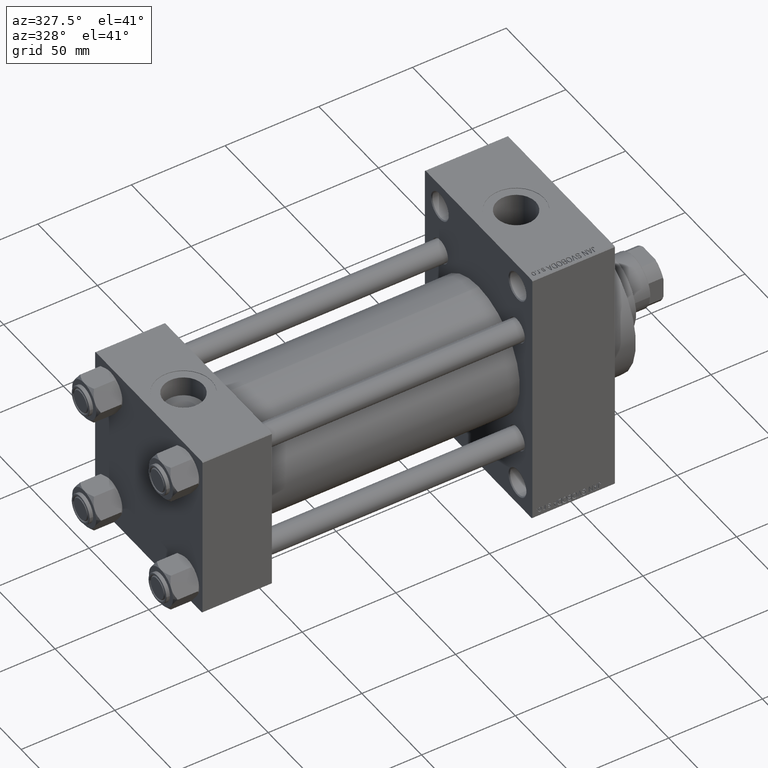
[diagram: clean part render]
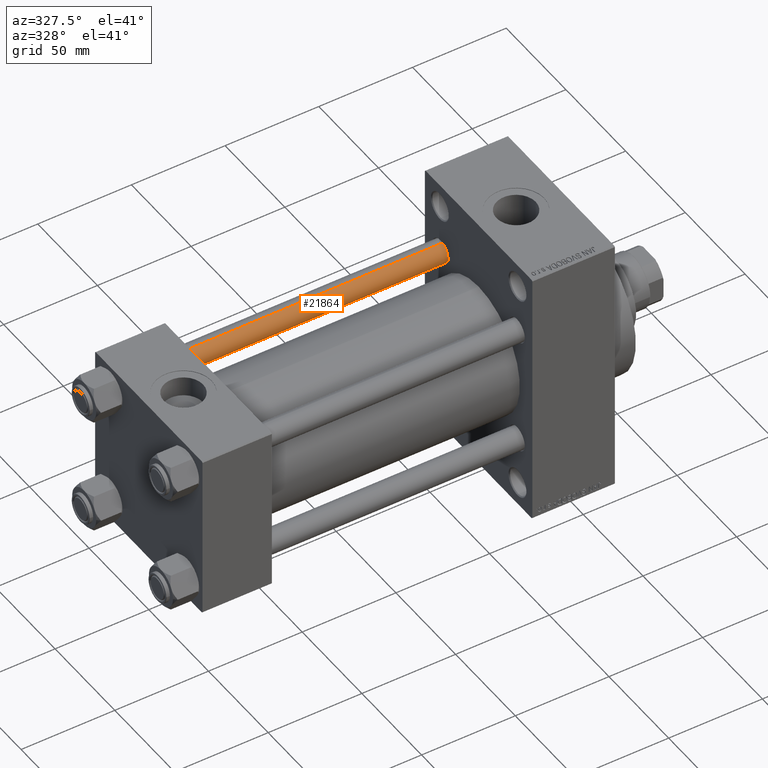
[diagram: same view with one face highlighted and labeled with its STEP entity id]
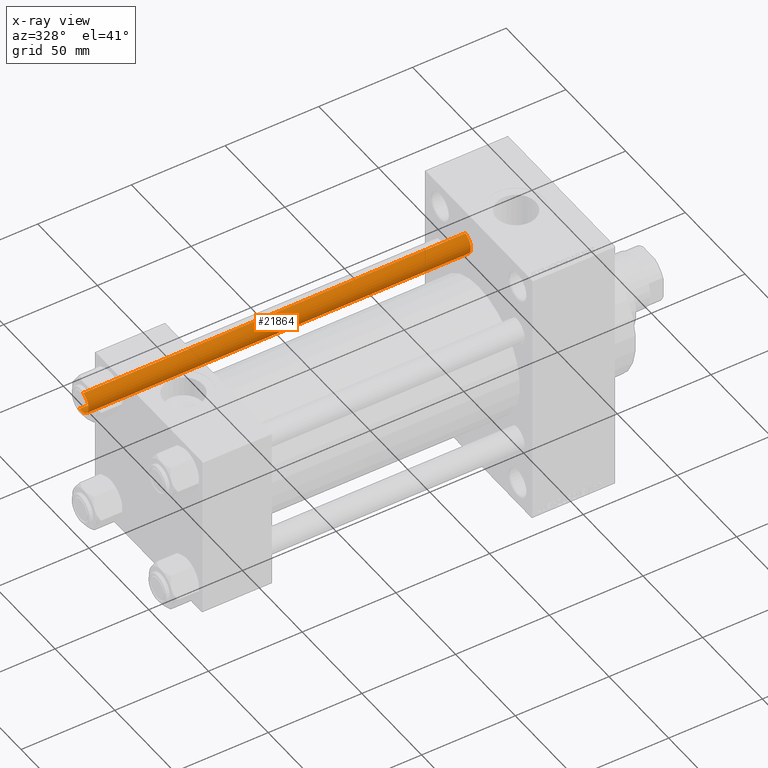
[diagram: x-ray of the same camera — body ghosted, the highlighted face saturated]
A machine part, auxiliary view. The second image highlights one B-rep face of the part: STEP entity #21864.
The next image is the same camera in x-ray: the body ghosted, the highlighted face saturated — about 0% of this face is hidden behind the body in this view.
In plain terms, the highlighted cylindrical surface (edge-blend (fillet) strip) has radius 6 mm, axis along (-1, -0, 0).
Its self-contained STEP definition (entity closure, byte-faithful):
#855 = ORIENTED_EDGE ( 'NONE', *, *, #45555, .T. ) ;
#1610 = CARTESIAN_POINT ( 'NONE',  ( -6.000000000000000888, 0.000000000000000000, 0.5000000000001114664 ) ) ;
#3534 = CARTESIAN_POINT ( 'NONE',  ( -6.000000000000000888, 0.000000000000000000, 205.0000000000000000 ) ) ;
#4113 = CARTESIAN_POINT ( 'NONE',  ( 0.000000000000000000, 0.000000000000000000, 204.5000000000000568 ) ) ;
#9475 = ORIENTED_EDGE ( 'NONE', *, *, #29589, .T. ) ;
#10439 = CARTESIAN_POINT ( 'NONE',  ( -6.000000000000000888, 0.000000000000000000, 204.5000000000000568 ) ) ;
#10606 = EDGE_CURVE ( 'NONE', #17560, #15261, #14183, .T. ) ;
#13169 = DIRECTION ( 'NONE',  ( 1.000000000000000000, 0.000000000000000000, 0.000000000000000000 ) ) ;
#14183 = LINE ( 'NONE', #14656, #21944 ) ;
#14656 = CARTESIAN_POINT ( 'NONE',  ( 6.000000000000000888, 7.347880794884119736E-16, 205.0000000000000000 ) ) ;
#14871 = CARTESIAN_POINT ( 'NONE',  ( 6.000000000000000888, 7.347880794884119736E-16, 0.5000000000001114664 ) ) ;
#14896 = DIRECTION ( 'NONE',  ( 1.000000000000000000, 0.000000000000000000, 0.000000000000000000 ) ) ;
#15261 = VERTEX_POINT ( 'NONE', #14871 ) ;
#15319 = AXIS2_PLACEMENT_3D ( 'NONE', #31281, #20485, #42084 ) ;
#17560 = VERTEX_POINT ( 'NONE', #28112 ) ;
#18740 = DIRECTION ( 'NONE',  ( 0.000000000000000000, 0.000000000000000000, -1.000000000000000000 ) ) ;
#20485 = DIRECTION ( 'NONE',  ( -0.000000000000000000, -0.000000000000000000, -1.000000000000000000 ) ) ;
#21864 = ADVANCED_FACE ( 'NONE', ( #35593 ), #31744, .T. ) ;
#21944 = VECTOR ( 'NONE', #25227, 1000.000000000000000 ) ;
#24437 = DIRECTION ( 'NONE',  ( -0.000000000000000000, -0.000000000000000000, 1.000000000000000000 ) ) ;
#24800 = VECTOR ( 'NONE', #41186, 1000.000000000000000 ) ;
#25227 = DIRECTION ( 'NONE',  ( -0.000000000000000000, -0.000000000000000000, -1.000000000000000000 ) ) ;
#25830 = LINE ( 'NONE', #3534, #24800 ) ;
#28112 = CARTESIAN_POINT ( 'NONE',  ( 6.000000000000000888, 7.347880794884119736E-16, 204.5000000000000568 ) ) ;
#29036 = VERTEX_POINT ( 'NONE', #1610 ) ;
#29589 = EDGE_CURVE ( 'NONE', #17560, #37984, #32457, .T. ) ;
#30147 = EDGE_CURVE ( 'NONE', #37984, #29036, #25830, .T. ) ;
#30191 = ORIENTED_EDGE ( 'NONE', *, *, #30147, .T. ) ;
#31281 = CARTESIAN_POINT ( 'NONE',  ( 0.000000000000000000, 0.000000000000000000, 205.0000000000000000 ) ) ;
#31744 = CYLINDRICAL_SURFACE ( 'NONE', #15319, 6.000000000000000888 ) ;
#31814 = AXIS2_PLACEMENT_3D ( 'NONE', #34539, #24437, #13169 ) ;
#32457 = CIRCLE ( 'NONE', #37833, 6.000000000000000888 ) ;
#34539 = CARTESIAN_POINT ( 'NONE',  ( 0.000000000000000000, 0.000000000000000000, 0.5000000000001114664 ) ) ;
#35593 = FACE_OUTER_BOUND ( 'NONE', #38686, .T. ) ;
#37833 = AXIS2_PLACEMENT_3D ( 'NONE', #4113, #18740, #14896 ) ;
#37984 = VERTEX_POINT ( 'NONE', #10439 ) ;
#38686 = EDGE_LOOP ( 'NONE', ( #45765, #9475, #30191, #855 ) ) ;
#41186 = DIRECTION ( 'NONE',  ( -0.000000000000000000, -0.000000000000000000, -1.000000000000000000 ) ) ;
#42084 = DIRECTION ( 'NONE',  ( -1.000000000000000000, 0.000000000000000000, 0.000000000000000000 ) ) ;
#45555 = EDGE_CURVE ( 'NONE', #29036, #15261, #45581, .T. ) ;
#45581 = CIRCLE ( 'NONE', #31814, 6.000000000000000888 ) ;
#45765 = ORIENTED_EDGE ( 'NONE', *, *, #10606, .F. ) ;